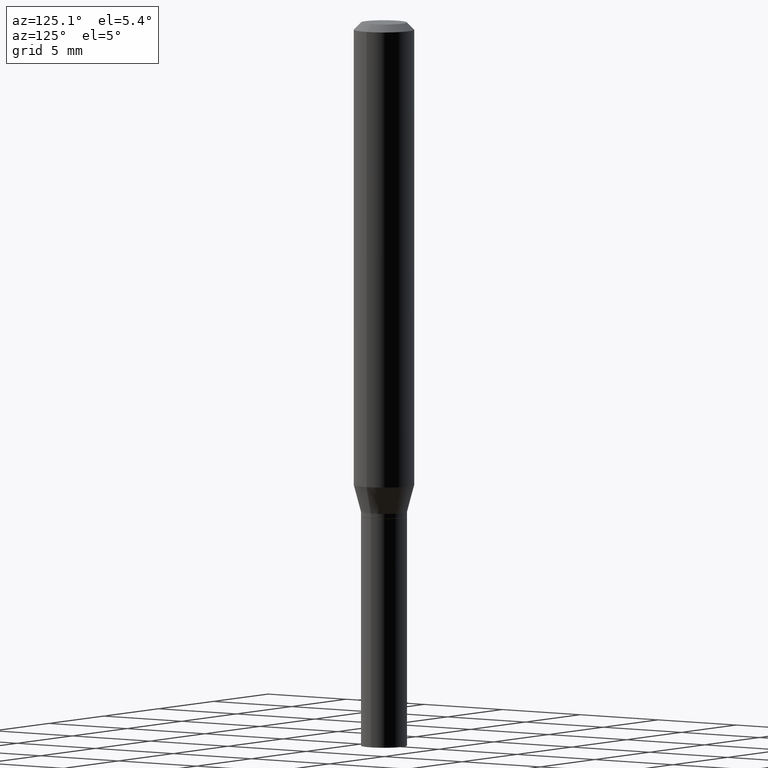
[diagram: clean part render]
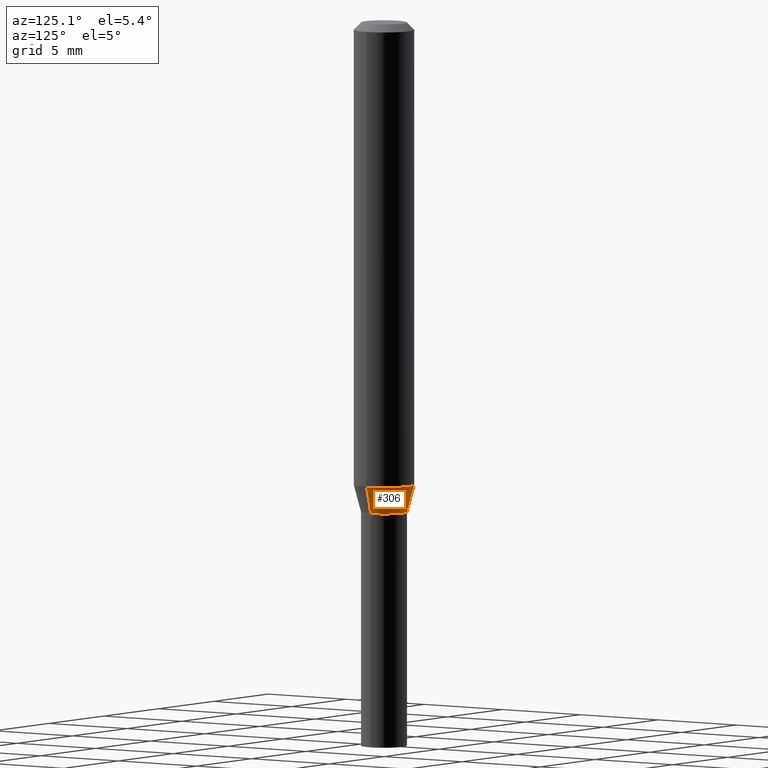
[diagram: same view with one face highlighted and labeled with its STEP entity id]
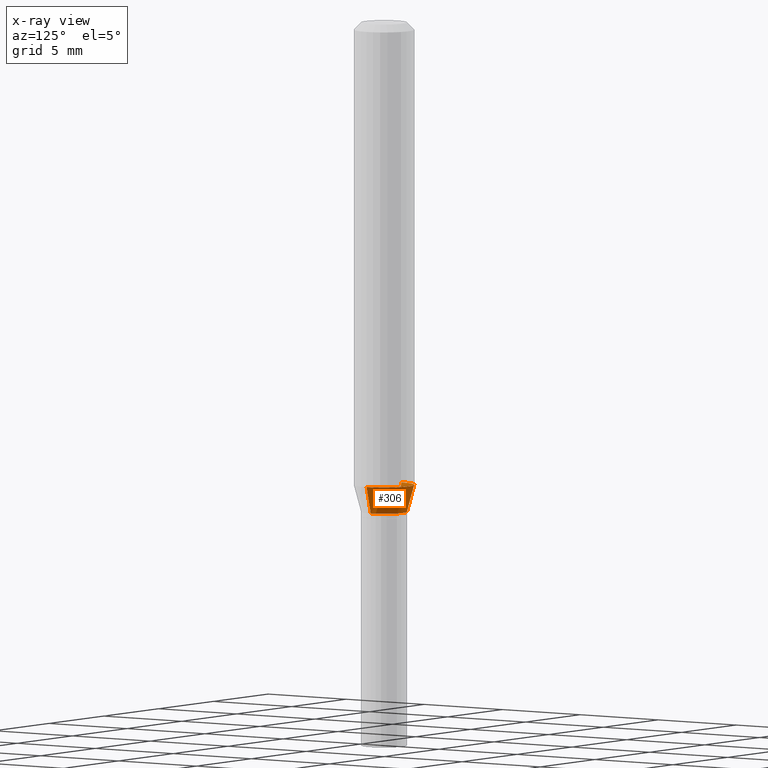
[diagram: x-ray of the same camera — body ghosted, the highlighted face saturated]
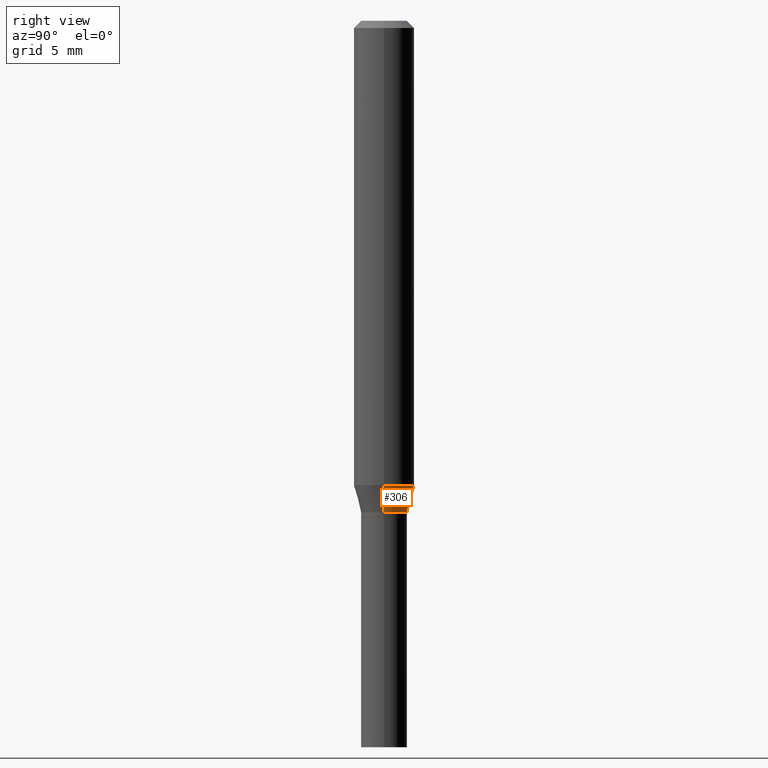
[diagram: same view with one face highlighted and labeled with its STEP entity id]
A machine part, auxiliary view. The second image highlights one B-rep face of the part: STEP entity #306.
The next image is the same camera in x-ray: the body ghosted, the highlighted face saturated — about 0% of this face is hidden behind the body in this view.
A second angle (right view) of the same face is appended — the face is thin or edge-on in the first view.
In plain terms, the highlighted conical surface has half-angle 15 deg.
Its self-contained STEP definition (entity closure, byte-faithful):
#11 = VERTEX_POINT ( 'NONE', #180 ) ;
#33 = ORIENTED_EDGE ( 'NONE', *, *, #386, .T. ) ;
#35 = CARTESIAN_POINT ( 'NONE',  ( -0.04750000000000006301, -3.206345759439744774E-15, -1.014999999999999902 ) ) ;
#42 = DIRECTION ( 'NONE',  ( 1.000000000000000000, -6.982962677686270655E-15, 0.000000000000000000 ) ) ;
#44 = ORIENTED_EDGE ( 'NONE', *, *, #355, .T. ) ;
#46 = EDGE_LOOP ( 'NONE', ( #44, #33, #297, #51 ) ) ;
#51 = ORIENTED_EDGE ( 'NONE', *, *, #465, .F. ) ;
#89 = CIRCLE ( 'NONE', #423, 0.06250000000000000000 ) ;
#129 = DIRECTION ( 'NONE',  ( 1.000000000000000000, -6.982962677686262766E-15, 0.000000000000000000 ) ) ;
#144 = CARTESIAN_POINT ( 'NONE',  ( -0.06250000000000000000, -2.904308562822113124E-15, -0.9590192378864672573 ) ) ;
#164 = CARTESIAN_POINT ( 'NONE',  ( 2.482150838277913354E-29, -3.543853558925792662E-15, -1.014999999999999902 ) ) ;
#170 = VECTOR ( 'NONE', #287, 39.37007874015748143 ) ;
#180 = CARTESIAN_POINT ( 'NONE',  ( 0.06250000000000000000, -3.784832940027567410E-15, -0.9590192378864672573 ) ) ;
#199 = CARTESIAN_POINT ( 'NONE',  ( 2.482150838277913354E-29, -3.543853558925792662E-15, -1.014999999999999902 ) ) ;
#204 = FACE_OUTER_BOUND ( 'NONE', #46, .T. ) ;
#211 = VECTOR ( 'NONE', #394, 39.37007874015748143 ) ;
#215 = CARTESIAN_POINT ( 'NONE',  ( 2.345251630782798448E-29, -3.348397772672175740E-15, -0.9590192378864672573 ) ) ;
#224 = LINE ( 'NONE', #400, #211 ) ;
#247 = DIRECTION ( 'NONE',  ( -2.445468806185136597E-29, 3.491481338843145583E-15, 1.000000000000000000 ) ) ;
#254 = LINE ( 'NONE', #35, #170 ) ;
#266 = CARTESIAN_POINT ( 'NONE',  ( -0.04750000000000006301, -3.055327161130928752E-15, -1.014999999999999902 ) ) ;
#281 = VERTEX_POINT ( 'NONE', #340 ) ;
#286 = VERTEX_POINT ( 'NONE', #266 ) ;
#287 = DIRECTION ( 'NONE',  ( -0.2588190451025215166, 5.211531920934551042E-15, 0.9659258262890679791 ) ) ;
#297 = ORIENTED_EDGE ( 'NONE', *, *, #379, .F. ) ;
#306 = ADVANCED_FACE ( 'NONE', ( #204 ), #439, .T. ) ;
#332 = DIRECTION ( 'NONE',  ( 1.000000000000000000, -6.982962677686262766E-15, 0.000000000000000000 ) ) ;
#340 = CARTESIAN_POINT ( 'NONE',  ( 0.04750000000000006301, -3.875544286115890173E-15, -1.014999999999999902 ) ) ;
#341 = DIRECTION ( 'NONE',  ( -2.445468806185136597E-29, 3.491481338843145583E-15, 1.000000000000000000 ) ) ;
#355 = EDGE_CURVE ( 'NONE', #281, #286, #402, .T. ) ;
#364 = AXIS2_PLACEMENT_3D ( 'NONE', #164, #341, #332 ) ;
#370 = DIRECTION ( 'NONE',  ( -2.445468806185136597E-29, 3.491481338843145583E-15, 1.000000000000000000 ) ) ;
#379 = EDGE_CURVE ( 'NONE', #11, #406, #89, .T. ) ;
#386 = EDGE_CURVE ( 'NONE', #286, #406, #254, .T. ) ;
#394 = DIRECTION ( 'NONE',  ( 0.2588190451025215166, 1.565188264969620784E-15, 0.9659258262890679791 ) ) ;
#400 = CARTESIAN_POINT ( 'NONE',  ( 0.04750000000000006301, -3.875544286115890173E-15, -1.014999999999999902 ) ) ;
#402 = CIRCLE ( 'NONE', #364, 0.04750000000000006301 ) ;
#406 = VERTEX_POINT ( 'NONE', #144 ) ;
#423 = AXIS2_PLACEMENT_3D ( 'NONE', #215, #247, #42 ) ;
#439 = CONICAL_SURFACE ( 'NONE', #450, 0.04750000000000006301, 0.2617993877991502405 ) ;
#450 = AXIS2_PLACEMENT_3D ( 'NONE', #199, #370, #129 ) ;
#465 = EDGE_CURVE ( 'NONE', #281, #11, #224, .T. ) ;